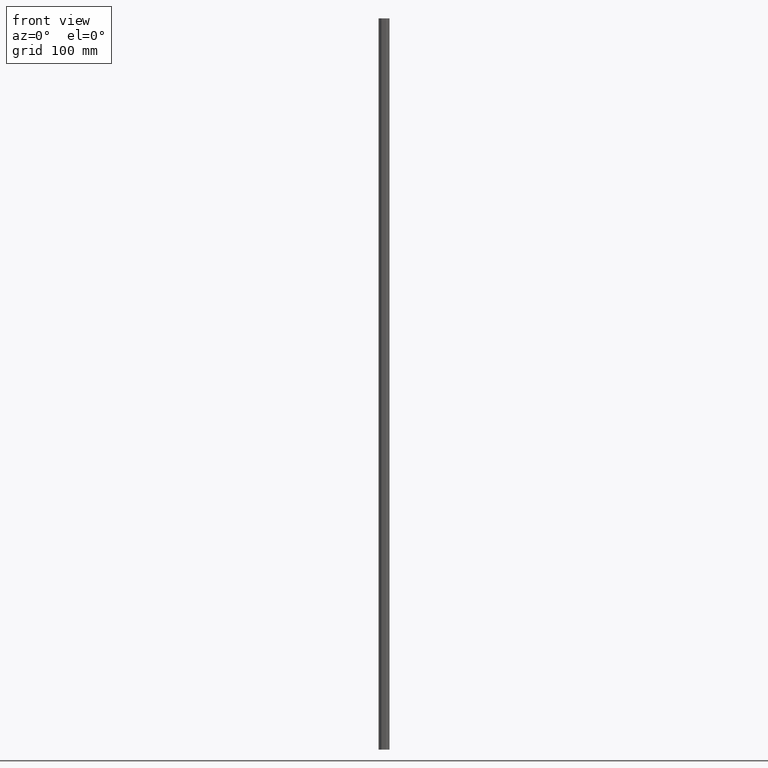
[diagram: clean part render]
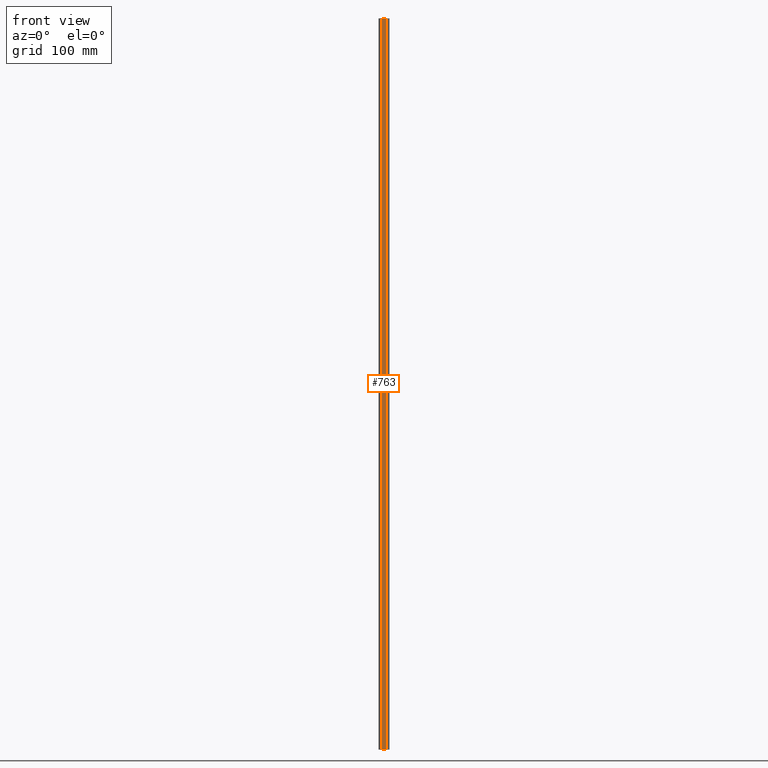
[diagram: same view with one face highlighted and labeled with its STEP entity id]
A machine part, front view. The second image highlights one B-rep face of the part: STEP entity #763.
In plain terms, the highlighted planar face has unit normal (0, 1, 0).
Its self-contained STEP definition (entity closure, byte-faithful):
#35 = VECTOR ( 'NONE', #456, 1000.000000000000000 ) ;
#63 = VECTOR ( 'NONE', #466, 1000.000000000000000 ) ;
#66 = VECTOR ( 'NONE', #486, 1000.000000000000000 ) ;
#71 = AXIS2_PLACEMENT_3D ( 'NONE', #555, #561, #586 ) ;
#83 = VECTOR ( 'NONE', #485, 1000.000000000000000 ) ;
#219 = ORIENTED_EDGE ( 'NONE', *, *, #736, .F. ) ;
#228 = ORIENTED_EDGE ( 'NONE', *, *, #726, .F. ) ;
#240 = ORIENTED_EDGE ( 'NONE', *, *, #712, .F. ) ;
#242 = ORIENTED_EDGE ( 'NONE', *, *, #735, .F. ) ;
#252 = VERTEX_POINT ( 'NONE', #296 ) ;
#261 = VERTEX_POINT ( 'NONE', #321 ) ;
#265 = VERTEX_POINT ( 'NONE', #341 ) ;
#266 = VERTEX_POINT ( 'NONE', #361 ) ;
#271 = EDGE_LOOP ( 'NONE', ( #242, #219, #228, #240 ) ) ;
#296 = CARTESIAN_POINT ( 'NONE',  ( -8.443996105043881800E-015, 0.2999999999999992700, 1000.000000000000000 ) ) ;
#321 = CARTESIAN_POINT ( 'NONE',  ( 5.499999999999305400, 0.3000000000000183600, 0.0000000000000000000 ) ) ;
#341 = CARTESIAN_POINT ( 'NONE',  ( 5.499999999999305400, 0.3000000000000183600, 1000.000000000000000 ) ) ;
#361 = CARTESIAN_POINT ( 'NONE',  ( -8.443996105043881800E-015, 0.2999999999999992700, 0.0000000000000000000 ) ) ;
#448 = CARTESIAN_POINT ( 'NONE',  ( 5.499999999999337400, 0.3000000000000372400, 1000.000000000000000 ) ) ;
#453 = LINE ( 'NONE', #448, #35 ) ;
#456 = DIRECTION ( 'NONE',  ( -0.0000000000000000000, -0.0000000000000000000, -1.000000000000000000 ) ) ;
#464 = CARTESIAN_POINT ( 'NONE',  ( -3.700000000000881300, 0.2999999999999994900, 1000.000000000000000 ) ) ;
#466 = DIRECTION ( 'NONE',  ( 1.000000000000000000, 0.0000000000000000000, -0.0000000000000000000 ) ) ;
#473 = LINE ( 'NONE', #464, #63 ) ;
#481 = LINE ( 'NONE', #484, #83 ) ;
#484 = CARTESIAN_POINT ( 'NONE',  ( -8.214374830203726600E-015, 0.2999999999999990500, 1000.000000000000000 ) ) ;
#485 = DIRECTION ( 'NONE',  ( 0.0000000000000000000, 0.0000000000000000000, 1.000000000000000000 ) ) ;
#486 = DIRECTION ( 'NONE',  ( -1.000000000000000000, -0.0000000000000000000, 0.0000000000000000000 ) ) ;
#497 = LINE ( 'NONE', #498, #66 ) ;
#498 = CARTESIAN_POINT ( 'NONE',  ( -3.700000000000881300, 0.2999999999999994900, 0.0000000000000000000 ) ) ;
#550 = FACE_OUTER_BOUND ( 'NONE', #271, .T. ) ;
#554 = PLANE ( 'NONE',  #71 ) ;
#555 = CARTESIAN_POINT ( 'NONE',  ( -8.673617379884035500E-015, 0.2999999999999999900, 1000.000000000000000 ) ) ;
#561 = DIRECTION ( 'NONE',  ( 0.0000000000000000000, 1.000000000000000000, 0.0000000000000000000 ) ) ;
#586 = DIRECTION ( 'NONE',  ( 0.0000000000000000000, -0.0000000000000000000, 1.000000000000000000 ) ) ;
#712 = EDGE_CURVE ( 'NONE', #265, #261, #453, .T. ) ;
#726 = EDGE_CURVE ( 'NONE', #261, #266, #497, .T. ) ;
#735 = EDGE_CURVE ( 'NONE', #252, #265, #473, .T. ) ;
#736 = EDGE_CURVE ( 'NONE', #266, #252, #481, .T. ) ;
#763 = ADVANCED_FACE ( 'NONE', ( #550 ), #554, .F. ) ;